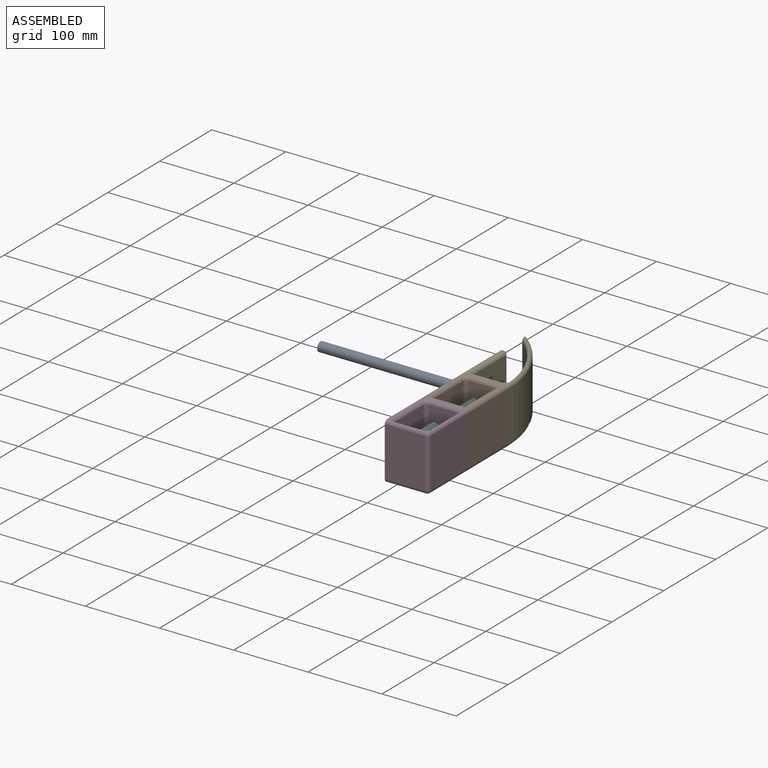
[diagram: assembled view]
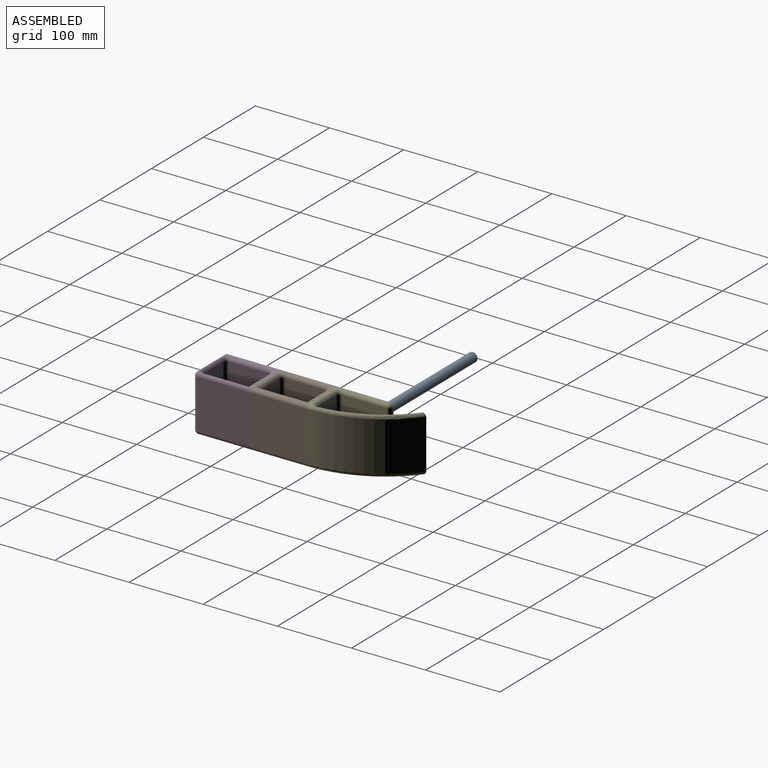
[diagram: assembled view, second angle]
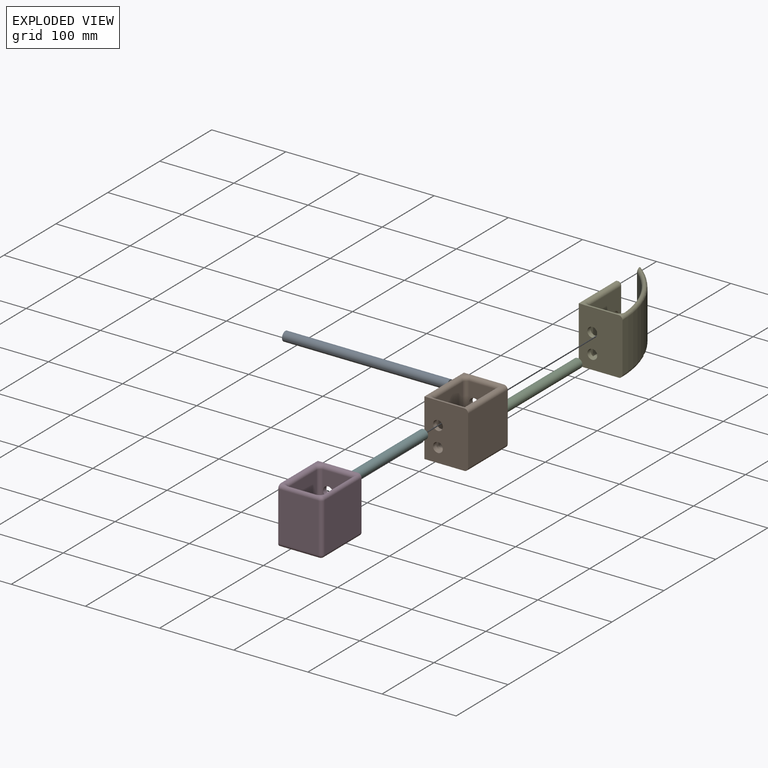
[diagram: exploded view]
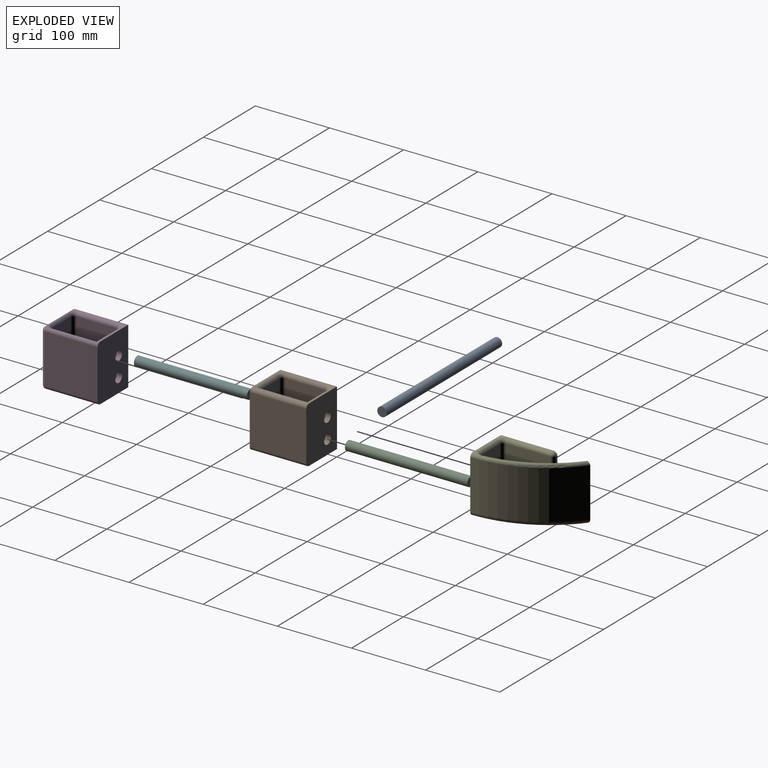
[diagram: exploded view, second angle]
ASSEMBLY  parts=6 mates=5
PART A: 3 faces, bbox 222.3x12.7x12.7 mm
  f0: cylinder r=6.35mm len=222.25mm, axis (-1,0,0), area 8867.4mm2, adj f1,f2
  f1: plane 12.7x12.7mm, normal (1,0,0), area 126.7mm2, adj f0
  f2: plane 12.7x12.7mm, normal (-1,0,0), area 126.7mm2, adj f0
PART B: 30 faces, bbox 62.5x83.1x76.2 mm
  f0: plane 76.2x53.96mm, normal (0,0,1), area 368.5mm2, adj f2,f8,f9,f14,f16,f20,f23,f24
  f1: plane 76.2x53.96mm, normal (0,0,-1), area 4112.1mm2, adj f2,f9,f14,f28
  f2: plane 76.2x76.2mm, normal (-1,0,0), area 5806.4mm2, adj f0,f1,f9,f14
  f3: cylinder r=6.6mm len=13.21mm, axis (0,-1,0), area 263.5mm2, adj f6,f14
  f4: cylinder r=6.6mm len=13.21mm, axis (0,-1,0), area 263.5mm2, adj f6,f14
  f5: plane 59.69x41.26mm, normal (0,1,0), area 2189mm2, adj f8,f11,f12,f22,f23,f27
  f6: plane 59.69x41.26mm, normal (0,-1,0), area 2189mm2, adj f3,f4,f8,f15,f16,f17
  f7: plane 53.34x36.18mm, normal (0,0,1), area 1930.1mm2, adj f15,f19,f21,f22
  f8: plane 73.66x64.77mm, normal (-1,0,0), area 4124mm2, adj f0,f5,f6,f16,f19,f23
  f9: plane 76.2x59.04mm, normal (0,-1,0), area 4214.1mm2, adj f0,f1,f2,f10,f11,f12,f28,f29
  f10: plane 76.2x66.04mm, normal (1,0,0), area 5032.2mm2, adj f9,f14,f28,f29
  f11: cylinder r=6.6mm len=13.21mm, axis (0,-1,0), area 263.5mm2, adj f5,f9
  f12: cylinder r=6.6mm len=13.21mm, axis (0,-1,0), area 263.5mm2, adj f5,f9
  f13: plane 59.69x53.34mm, normal (1,0,0), area 3183.9mm2, adj f17,f21,f24,f27
  f14: plane 76.2x59.04mm, normal (0,1,0), area 4214.1mm2, adj f0,f1,f2,f3,f4,f10,f28,f29
  f15: cylinder r=5.08mm len=41.26mm, axis (1,0,0), area 314.5mm2, adj f6,f7,f18,f19
  f16: cylinder r=5.08mm len=41.26mm, axis (-1,0,0), area 329.3mm2, adj f0,f6,f8,f20
  f17: cylinder r=5.08mm len=59.69mm, axis (0,0,-1), area 476.3mm2, adj f6,f13,f18,f20
  f18: sphere r=5.08mm, area 40.5mm2, adj f15,f17,f21
  f19: cylinder r=5.08mm len=63.5mm, axis (0,-1,0), area 477.2mm2, adj f7,f8,f15,f22
  f20: torus R=10.16mm, axis (0,0,1), area 86.8mm2, adj f0,f16,f17,f24
  f21: cylinder r=5.08mm len=53.34mm, axis (0,1,0), area 425.6mm2, adj f7,f13,f18,f25
  f22: cylinder r=5.08mm len=41.26mm, axis (-1,0,0), area 314.5mm2, adj f5,f7,f19,f25
  f23: cylinder r=5.08mm len=41.26mm, axis (1,0,0), area 329.3mm2, adj f0,f5,f8,f26
  f24: cylinder r=5.08mm len=53.34mm, axis (0,-1,0), area 425.6mm2, adj f0,f13,f20,f26
  f25: sphere r=5.08mm, area 40.5mm2, adj f21,f22,f27
  f26: torus R=10.16mm, axis (0,0,1), area 86.8mm2, adj f0,f23,f24,f27
  f27: cylinder r=5.08mm len=59.69mm, axis (0,0,1), area 476.3mm2, adj f5,f13,f25,f26
  f28: cylinder r=5.08mm len=76.2mm, axis (0,1,0), area 608mm2, adj f1,f9,f10,f14
  f29: cylinder r=5.08mm len=76.2mm, axis (0,-1,0), area 608mm2, adj f0,f9,f10,f14
PART C: 3 faces, bbox 12.7x165.1x12.7 mm
  f0: cylinder r=6.35mm len=165.1mm, axis (0,1,0), area 6587.2mm2, adj f1,f2
  f1: plane 12.7x12.7mm, normal (0,-1,0), area 126.7mm2, adj f0
  f2: plane 12.7x12.7mm, normal (0,1,0), area 126.7mm2, adj f0
PART D: 36 faces, bbox 62.5x83.1x76.2 mm
  f0: plane 64.77x36.18mm, normal (0,1,0), area 2343.7mm2, adj f5,f17,f28,f29
  f1: plane 59.69x41.26mm, normal (0,-1,0), area 2189mm2, adj f2,f10,f11,f18,f19,f30
  f2: plane 59.69x58.42mm, normal (-1,0,0), area 3487.1mm2, adj f1,f24,f29,f33
  f3: plane 76.2x76.2mm, normal (-1,0,0), area 5521.3mm2, adj f6,f7,f8,f9,f15,f27,f34,f35
  f4: plane 71.12x66.04mm, normal (1,0,0), area 4696.8mm2, adj f8,f13,f22,f31
  f5: plane 58.42x36.18mm, normal (0,0,1), area 2113.9mm2, adj f0,f14,f18,f24
  f6: plane 71.12x53.96mm, normal (0,0,-1), area 3837.9mm2, adj f3,f8,f13,f15
  f7: plane 66.04x53.96mm, normal (0,-1,0), area 3563.8mm2, adj f3,f15,f22,f27
  f8: plane 76.2x59.04mm, normal (0,1,0), area 4214.1mm2, adj f3,f4,f6,f9,f10,f11,f13,f31
  f9: plane 71.12x53.96mm, normal (0,0,1), area 183.9mm2, adj f3,f8,f21,f23,f25,f27,f30,f31
  f10: cylinder r=6.6mm len=13.21mm, axis (0,-1,0), area 263.5mm2, adj f1,f8
  f11: cylinder r=6.6mm len=13.21mm, axis (0,-1,0), area 263.5mm2, adj f1,f8
  f12: plane 59.69x53.34mm, normal (1,0,0), area 2909.8mm2, adj f14,f17,f19,f21,f34,f35
  f13: cylinder r=5.08mm len=71.12mm, axis (0,1,0), area 567.5mm2, adj f4,f6,f8,f20
  f14: cylinder r=5.08mm len=58.42mm, axis (0,1,0), area 451.4mm2, adj f5,f12,f16,f17
  f15: cylinder r=5.08mm len=53.96mm, axis (1,0,0), area 430.6mm2, adj f3,f6,f7,f20
  f16: sphere r=5.08mm, area 40.5mm2, adj f14,f18,f19
  f17: cylinder r=5.08mm len=64.77mm, axis (0,0,1), area 502.1mm2, adj f0,f12,f14,f23
  f18: cylinder r=5.08mm len=41.26mm, axis (1,0,0), area 314.5mm2, adj f1,f5,f16,f24
  f19: cylinder r=5.08mm len=59.69mm, axis (0,0,-1), area 476.3mm2, adj f1,f12,f16,f25
  f20: sphere r=5.08mm, area 40.5mm2, adj f13,f15,f22
  f21: cylinder r=5.08mm len=53.34mm, axis (0,-1,0), area 425.6mm2, adj f9,f12,f23,f25
  f22: cylinder r=5.08mm len=66.04mm, axis (0,0,-1), area 527mm2, adj f4,f7,f20,f26
  f23: torus R=10.16mm, axis (0,0,1), area 75.7mm2, adj f9,f17,f21,f27,f28
  f24: cylinder r=5.08mm len=63.5mm, axis (0,-1,0), area 477.2mm2, adj f2,f5,f18,f29
  f25: torus R=10.16mm, axis (0,0,1), area 86.8mm2, adj f9,f19,f21,f30
  f26: sphere r=5.08mm, area 40.2mm2, adj f22,f27,f31,f32
  f27: cylinder r=5.08mm len=53.96mm, axis (-1,0,0), area 340mm2, adj f3,f7,f9,f23,f26,f28,f32
  f28: cylinder r=5.08mm len=36.18mm, axis (1,0,0), area 218.1mm2, adj f0,f23,f27,f32
  f29: cylinder r=5.08mm len=64.77mm, axis (0,0,1), area 502.1mm2, adj f0,f2,f24,f32
  f30: cylinder r=5.08mm len=44.44mm, axis (-1,0,0), area 340.3mm2, adj f1,f9,f25,f31,f33
  f31: cylinder r=5.08mm len=71.12mm, axis (0,-1,0), area 435.7mm2, adj f4,f8,f9,f26,f30,f32,f33
  f32: torus R=10.16mm, axis (0,0,1), area 65mm2, adj f26,f27,f28,f29,f31,f33
  f33: cylinder r=5.08mm len=61.6mm, axis (0,1,0), area 358.8mm2, adj f2,f30,f31,f32
  f34: cylinder r=6.6mm len=13.21mm, axis (-1,0,0), area 263.5mm2, adj f3,f12
  f35: cylinder r=6.6mm len=13.21mm, axis (-1,0,0), area 263.5mm2, adj f3,f12
PART E: 29 faces, bbox 76.9x133.9x76.2 mm
  f0: plane 64.77x59.69mm, normal (1,0,0), area 3592.1mm2, adj f2,f12,f13,f15,f17,f18
  f1: cylinder r=146.05mm len=100.48mm, axis (0,0,-1), area 6940.7mm2, adj f4,f20,f24,f27
  f2: plane 94.2x47.15mm, normal (0,0,1), area 2537.3mm2, adj f0,f3,f4,f15,f19,f20
  f3: plane 64.77x1.27mm, normal (0,1,0), area 82.3mm2, adj f2,f4,f14,f15
  f4: plane 120.46x76.2mm, normal (-1,0,0), area 6363.2mm2, adj f1,f2,f3,f5,f6,f7,f11,f12
  f5: cylinder r=152.4mm len=120.46mm, axis (0,0,-1), area 9173.7mm2, adj f4,f11,f25,f28
  f6: plane 113.96x53.96mm, normal (0,0,-1), area 4278.4mm2, adj f4,f11,f28
  f7: plane 71.12x53.96mm, normal (0,0,1), area 184.9mm2, adj f4,f11,f14,f17,f21,f23,f25,f26
  f8: cylinder r=6.6mm len=13.21mm, axis (0,-1,0), area 263.5mm2, adj f9,f11
  f9: plane 59.69x35.72mm, normal (0,1,0), area 1858.1mm2, adj f8,f10,f18,f19,f23,f24
  f10: cylinder r=6.6mm len=13.21mm, axis (0,-1,0), area 263.5mm2, adj f9,f11
  f11: plane 76.2x59.04mm, normal (0,-1,0), area 4214.1mm2, adj f4,f5,f6,f7,f8,f10,f25,f28
  f12: cylinder r=6.6mm len=13.21mm, axis (-1,0,0), area 263.5mm2, adj f0,f4
  f13: cylinder r=6.6mm len=13.21mm, axis (-1,0,0), area 263.5mm2, adj f0,f4
  f14: cylinder r=5.08mm len=5.08mm, axis (1,0,0), area 10.1mm2, adj f3,f4,f7,f16
  f15: cylinder r=5.08mm len=64.77mm, axis (0,0,1), area 516.8mm2, adj f0,f2,f3,f16
  f16: sphere r=5.08mm, area 40.5mm2, adj f14,f15,f17
  f17: cylinder r=5.08mm len=59.69mm, axis (0,-1,0), area 476.3mm2, adj f0,f7,f16,f21
  f18: cylinder r=5.08mm len=64.77mm, axis (0,0,1), area 502.1mm2, adj f0,f9,f19,f21
  f19: cylinder r=5.08mm len=40.8mm, axis (-1,0,0), area 310.8mm2, adj f2,f9,f18,f22
  f20: torus R=140.97mm, axis (0,0,1), area 903.8mm2, adj f1,f2,f4,f22
  f21: torus R=10.16mm, axis (0,0,1), area 86.8mm2, adj f7,f17,f18,f23
  f22: sphere r=5.08mm, area 42.6mm2, adj f19,f20,f24
  f23: cylinder r=5.08mm len=35.72mm, axis (1,0,0), area 285mm2, adj f7,f9,f21,f26
  f24: cylinder r=5.08mm len=59.69mm, axis (0,0,-1), area 500.9mm2, adj f1,f9,f22,f26
  f25: torus R=147.32mm, axis (0,0,1), area 838.9mm2, adj f4,f5,f7,f11,f26,f27
  f26: torus R=10.16mm, axis (0,0,1), area 79.8mm2, adj f7,f23,f24,f25,f27
  f27: torus R=151.13mm, axis (0,0,1), area 711.7mm2, adj f1,f4,f25,f26
  f28: torus R=147.32mm, axis (0,0,1), area 1083.5mm2, adj f4,f5,f6,f11
PART F: 3 faces, bbox 12.7x152.4x12.7 mm
  f0: cylinder r=6.35mm len=152.4mm, axis (0,-1,0), area 6080.5mm2, adj f1,f2
  f1: plane 12.7x12.7mm, normal (0,1,0), area 126.7mm2, adj f0
  f2: plane 12.7x12.7mm, normal (0,-1,0), area 126.7mm2, adj f0
PLACE A t=(0,-80.52,15.24)mm
PLACE B t=(0,-80.52,15.24)mm
PLACE C t=(0,-80.52,15.24)mm
PLACE D t=(0,-80.52,15.24)mm
PLACE E t=(0,-80.52,15.24)mm fixed
PLACE F t=(-20.08,-144.02,42.12)mm
MATE fastened E.f12 <-> A.f0  axis (1,0,0) through (99.71,27.68,104.14)mm
MATE fastened F.f0 <-> E.f10  axis (0,1,0) through (111.66,2.03,111.78)mm
MATE fastened C.f0 <-> D.f10  axis (0,-1,0) through (111.66,-86.87,84.9)mm
MATE slider B.f4 <-> F.f0  axis (0,-1,0) through (111.66,-10.67,111.78)mm
MATE slider C.f0 <-> B.f3  axis (0,1,0) through (111.66,-4.32,84.9)mm
